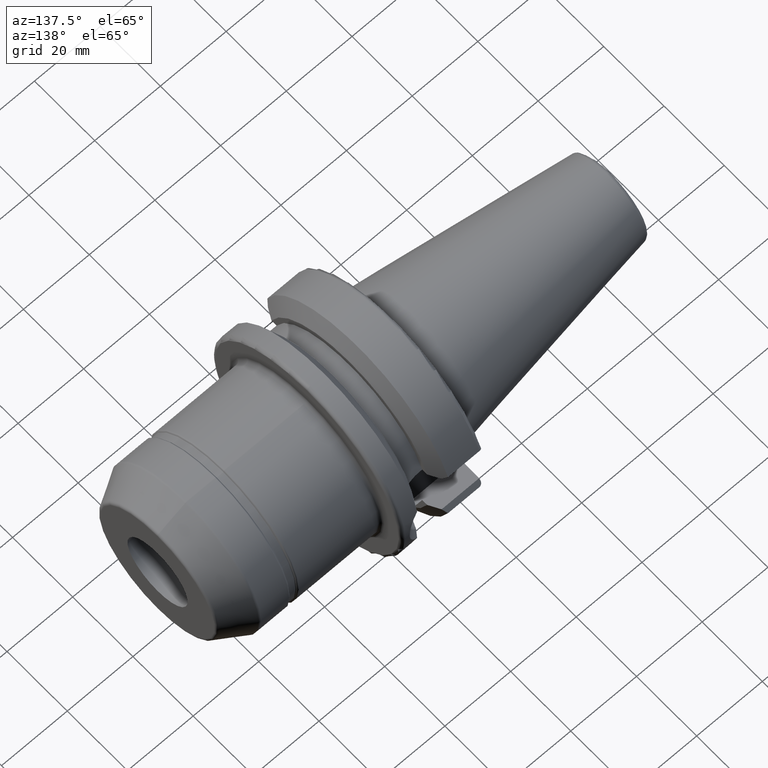
[diagram: clean part render]
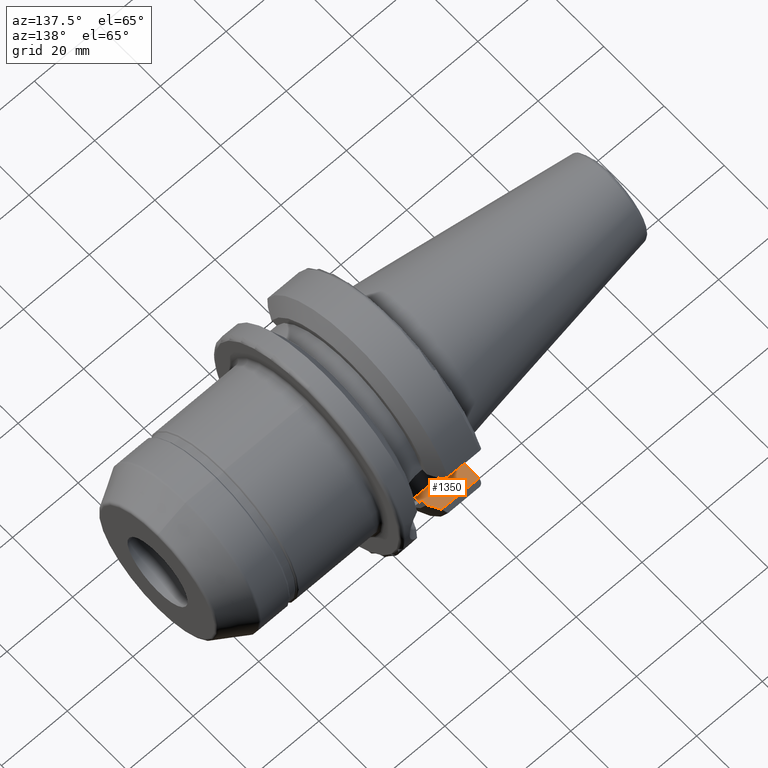
[diagram: same view with one face highlighted and labeled with its STEP entity id]
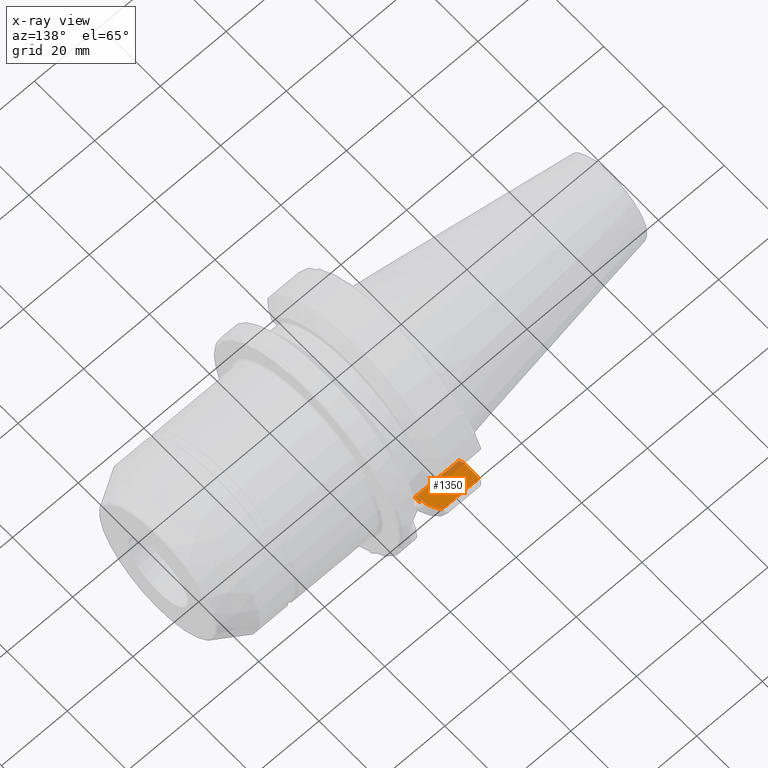
[diagram: x-ray of the same camera — body ghosted, the highlighted face saturated]
A machine part, auxiliary view. The second image highlights one B-rep face of the part: STEP entity #1350.
The next image is the same camera in x-ray: the body ghosted, the highlighted face saturated — about 10% of this face is hidden behind the body in this view.
In plain terms, the highlighted planar face has unit normal (-0, 0, -1).
Its self-contained STEP definition (entity closure, byte-faithful):
#19=(
BOUNDED_CURVE()
B_SPLINE_CURVE(2,(#2476,#2477,#2478),.UNSPECIFIED.,.F.,.F.)
B_SPLINE_CURVE_WITH_KNOTS((3,3),(0.173905198239554,0.523582790832813),
 .UNSPECIFIED.)
CURVE()
GEOMETRIC_REPRESENTATION_ITEM()
RATIONAL_B_SPLINE_CURVE((1.00136360040299,1.00205272099915,1.))
REPRESENTATION_ITEM('')
);
#21=(
BOUNDED_CURVE()
B_SPLINE_CURVE(2,(#2486,#2487,#2488),.UNSPECIFIED.,.F.,.F.)
B_SPLINE_CURVE_WITH_KNOTS((3,3),(0.,0.083504404449913),.UNSPECIFIED.)
CURVE()
GEOMETRIC_REPRESENTATION_ITEM()
RATIONAL_B_SPLINE_CURVE((1.,1.00011051903129,1.))
REPRESENTATION_ITEM('')
);
#66=PLANE('',#1510);
#147=FACE_OUTER_BOUND('',#225,.T.);
#225=EDGE_LOOP('',(#1070,#1071,#1072,#1073,#1074,#1075,#1076,#1077,#1078));
#280=LINE('',#2352,#346);
#290=LINE('',#2473,#356);
#291=LINE('',#2490,#357);
#292=LINE('',#2492,#358);
#293=LINE('',#2494,#359);
#294=LINE('',#2496,#360);
#295=LINE('',#2497,#361);
#346=VECTOR('',#1795,10.);
#356=VECTOR('',#1825,10.);
#357=VECTOR('',#1832,10.);
#358=VECTOR('',#1833,10.);
#359=VECTOR('',#1834,10.);
#360=VECTOR('',#1835,10.);
#361=VECTOR('',#1836,10.);
#576=VERTEX_POINT('',#2349);
#577=VERTEX_POINT('',#2351);
#591=VERTEX_POINT('',#2469);
#592=VERTEX_POINT('',#2475);
#594=VERTEX_POINT('',#2485);
#595=VERTEX_POINT('',#2489);
#596=VERTEX_POINT('',#2491);
#597=VERTEX_POINT('',#2493);
#598=VERTEX_POINT('',#2495);
#746=EDGE_CURVE('',#576,#577,#280,.T.);
#767=EDGE_CURVE('',#577,#591,#290,.T.);
#768=EDGE_CURVE('',#591,#592,#19,.T.);
#771=EDGE_CURVE('',#594,#576,#21,.T.);
#772=EDGE_CURVE('',#595,#594,#291,.T.);
#773=EDGE_CURVE('',#596,#595,#292,.T.);
#774=EDGE_CURVE('',#596,#597,#293,.T.);
#775=EDGE_CURVE('',#598,#597,#294,.T.);
#776=EDGE_CURVE('',#592,#598,#295,.T.);
#1070=ORIENTED_EDGE('',*,*,#767,.F.);
#1071=ORIENTED_EDGE('',*,*,#746,.F.);
#1072=ORIENTED_EDGE('',*,*,#771,.F.);
#1073=ORIENTED_EDGE('',*,*,#772,.F.);
#1074=ORIENTED_EDGE('',*,*,#773,.F.);
#1075=ORIENTED_EDGE('',*,*,#774,.T.);
#1076=ORIENTED_EDGE('',*,*,#775,.F.);
#1077=ORIENTED_EDGE('',*,*,#776,.F.);
#1078=ORIENTED_EDGE('',*,*,#768,.F.);
#1350=ADVANCED_FACE('',(#147),#66,.F.);
#1510=AXIS2_PLACEMENT_3D('',#2484,#1830,#1831);
#1795=DIRECTION('',(0.,1.,0.));
#1825=DIRECTION('',(1.,0.,-7.9585879901445E-17));
#1830=DIRECTION('center_axis',(-7.9585879901445E-17,0.,-1.));
#1831=DIRECTION('ref_axis',(-1.,0.,7.9585879901445E-17));
#1832=DIRECTION('',(0.,1.,0.));
#1833=DIRECTION('',(-1.,0.,7.9585879901445E-17));
#1834=DIRECTION('',(0.,1.,0.));
#1835=DIRECTION('',(1.,0.,0.));
#1836=DIRECTION('',(0.,-1.,0.));
#2349=CARTESIAN_POINT('',(1.,23.6684917136686,-8.05));
#2351=CARTESIAN_POINT('',(0.999999999999993,28.8540227227866,-8.05));
#2352=CARTESIAN_POINT('',(0.999999999999993,26.55,-8.05));
#2469=CARTESIAN_POINT('',(12.4560255586892,28.8540227227866,-8.05));
#2473=CARTESIAN_POINT('',(6.78451815366905,28.8540227227866,-8.05));
#2475=CARTESIAN_POINT('',(14.1,25.8705666509569,-8.05));
#2476=CARTESIAN_POINT('Ctrl Pts',(12.4560255586892,28.8540227227866,-8.05));
#2477=CARTESIAN_POINT('Ctrl Pts',(13.3228255918789,27.2874638426469,-8.05));
#2478=CARTESIAN_POINT('Ctrl Pts',(14.1,25.8705666509569,-8.05));
#2484=CARTESIAN_POINT('Origin',(14.95,22.6,-8.05));
#2485=CARTESIAN_POINT('',(1.4,22.9354852542653,-8.05));
#2486=CARTESIAN_POINT('Ctrl Pts',(1.4,22.9354852542653,-8.05));
#2487=CARTESIAN_POINT('Ctrl Pts',(1.20314568199697,23.2968387088917,-8.05));
#2488=CARTESIAN_POINT('Ctrl Pts',(1.,23.6684917136686,-8.05));
#2489=CARTESIAN_POINT('',(1.4,22.6,-8.05));
#2490=CARTESIAN_POINT('',(1.4,23.4535898384862,-8.05));
#2491=CARTESIAN_POINT('',(14.95,22.6,-8.05));
#2492=CARTESIAN_POINT('',(14.95,22.6,-8.05));
#2493=CARTESIAN_POINT('',(14.95,24.1960224003864,-8.05));
#2494=CARTESIAN_POINT('',(14.95,22.6,-8.05));
#2495=CARTESIAN_POINT('',(14.1,24.1960224003864,-8.05));
#2496=CARTESIAN_POINT('',(16.6,24.1960224003864,-8.05));
#2497=CARTESIAN_POINT('',(14.1,24.05,-8.05));